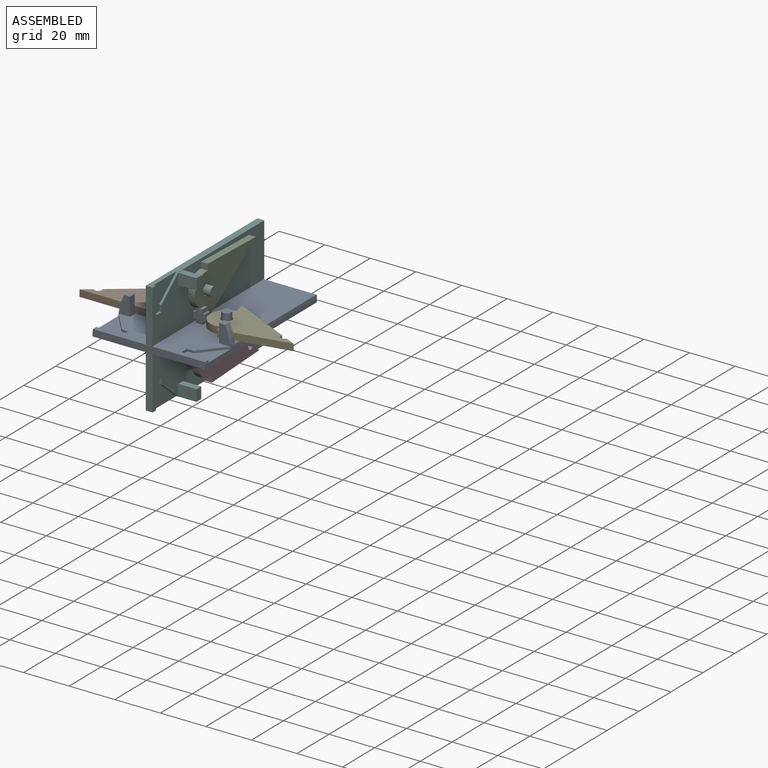
[diagram: assembled view]
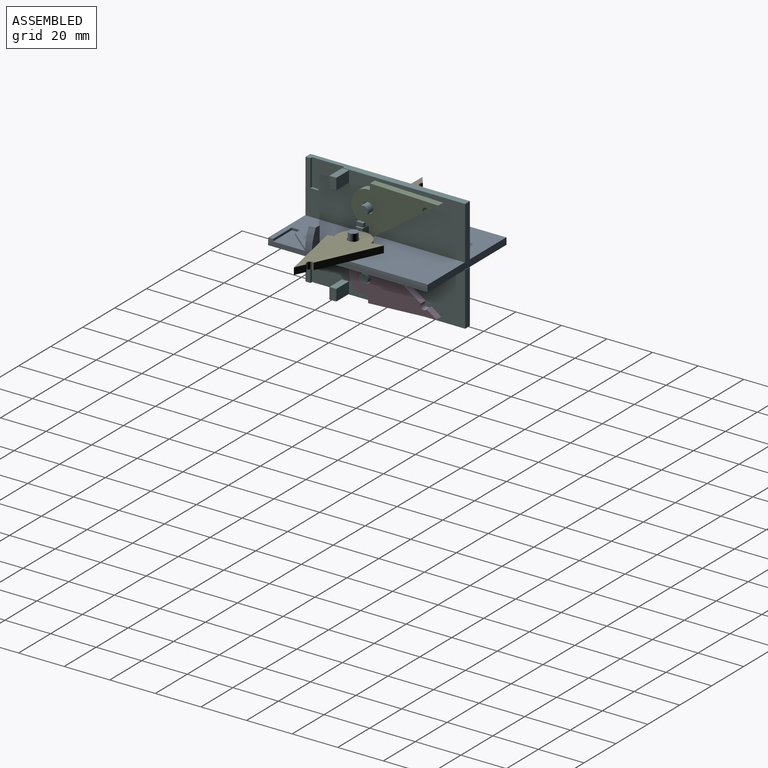
[diagram: assembled view, second angle]
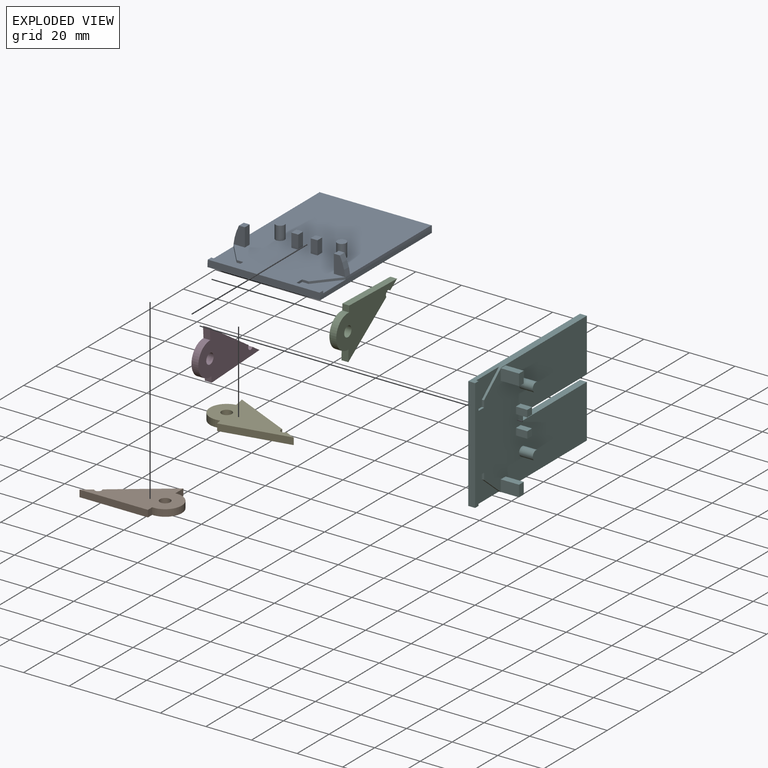
[diagram: exploded view]
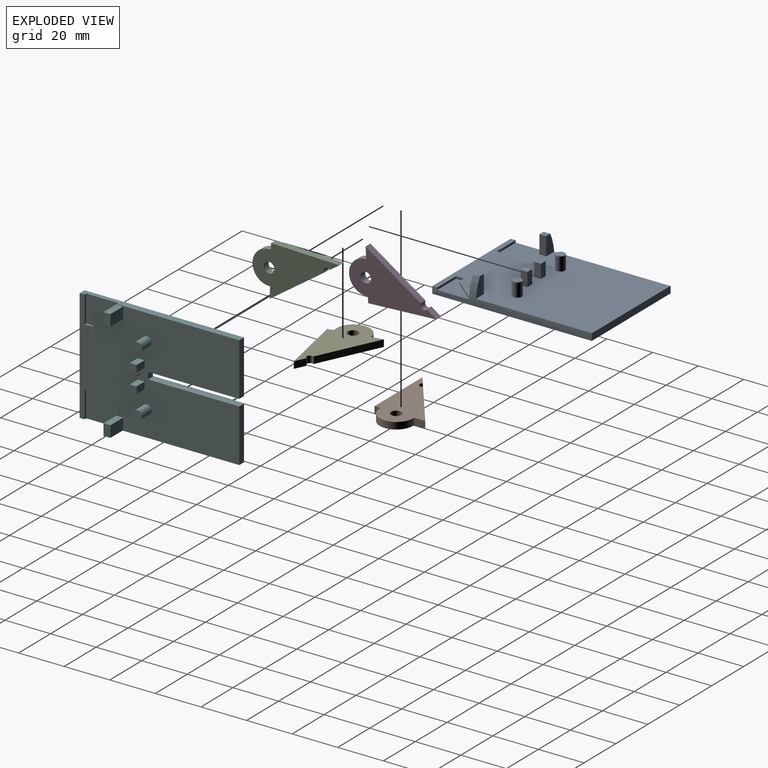
[diagram: exploded view, second angle]
ASSEMBLY  parts=6 mates=4
PART A: 42 faces, bbox 49.5x70x11 mm
  f0: plane 70x49.47mm, normal (0,0,1), area 3187.7mm2, adj f1,f3,f4,f6,f7,f9,f10,f12
  f1: plane 49.4x3mm, normal (0,-1,0), area 147.8mm2, adj f0,f2,f38,f41
  f2: plane 70x49.47mm, normal (0,0,-1), area 3458mm2, adj f1,f15,f16,f27,f38,f39,f40,f41
  f3: plane 8x4.98mm, normal (0,1,0), area 32.2mm2, adj f0,f5,f19,f41
  f4: plane 8x4.98mm, normal (0,-1,0), area 32.2mm2, adj f0,f5,f19,f41
  f5: plane 3x2.58mm, normal (0,0,1), area 7.7mm2, adj f3,f4,f19,f41
  f6: plane 11.71x1mm, normal (0,1,0), area 11.7mm2, adj f0,f8,f25,f41
  f7: plane 10.57x8.82mm, normal (-0.77,-0.64,0), area 13.7mm2, adj f0,f8,f26,f41
  f8: plane 14.04x11.71mm, normal (0,0,1), area 87.3mm2, adj f6,f7,f25,f26,f41
  f9: plane 8x4.98mm, normal (0,1,0), area 32.2mm2, adj f0,f11,f30,f38
  f10: plane 8x4.98mm, normal (0,-1,0), area 32.2mm2, adj f0,f11,f30,f38
  f11: plane 3x2.58mm, normal (0,0,1), area 7.7mm2, adj f9,f10,f30,f38
  f12: plane 11.71x1mm, normal (0,1,0), area 11.7mm2, adj f0,f14,f36,f38
  f13: plane 10.57x8.82mm, normal (0.77,-0.64,0), area 13.7mm2, adj f0,f14,f37,f38
  f14: plane 14.04x11.71mm, normal (0,0,1), area 87.3mm2, adj f12,f13,f36,f37,f38
  f15: plane 3x0.06mm, normal (-1,0,0), area 0.2mm2, adj f0,f2,f16,f40
  f16: plane 49.47x3mm, normal (0,1,0), area 148.4mm2, adj f0,f2,f15,f27
  f17: cylinder r=2mm len=6mm, axis (0,0,-1), area 75.4mm2, adj f0,f18
  f18: plane 4x4mm, normal (0,0,1), area 12.6mm2, adj f17
  f19: plane 8x3mm, normal (1,0,0), area 24mm2, adj f0,f3,f4,f5
  f20: plane 6x3mm, normal (-1,0,0), area 18mm2, adj f0,f21,f23,f24
  f21: plane 6x3mm, normal (0,-1,0), area 18mm2, adj f0,f20,f22,f24
  f22: plane 6x3mm, normal (1,0,0), area 18mm2, adj f0,f21,f23,f24
  f23: plane 6x3mm, normal (0,1,0), area 18mm2, adj f0,f20,f22,f24
  f24: plane 3x3mm, normal (0,0,1), area 9mm2, adj f20,f21,f22,f23
  f25: plane 3.47x1mm, normal (-1,0,0), area 3.5mm2, adj f0,f6,f8,f26
  f26: plane 2.89x1mm, normal (0,-1,0), area 2.9mm2, adj f0,f7,f8,f25
  f27: plane 3x0.06mm, normal (1,0,0), area 0.2mm2, adj f0,f2,f16,f39
  f28: cylinder r=2mm len=6mm, axis (0,0,-1), area 75.4mm2, adj f0,f29
  f29: plane 4x4mm, normal (0,0,1), area 12.6mm2, adj f28
  f30: plane 8x3mm, normal (-1,0,0), area 24mm2, adj f0,f9,f10,f11
  f31: plane 6x3mm, normal (1,0,0), area 18mm2, adj f0,f32,f34,f35
  f32: plane 6x3mm, normal (0,-1,0), area 18mm2, adj f0,f31,f33,f35
  f33: plane 6x3mm, normal (-1,0,0), area 18mm2, adj f0,f32,f34,f35
  f34: plane 6x3mm, normal (0,1,0), area 18mm2, adj f0,f31,f33,f35
  f35: plane 3x3mm, normal (0,0,1), area 9mm2, adj f31,f32,f33,f34
  f36: plane 3.47x1mm, normal (1,0,0), area 3.5mm2, adj f0,f12,f14,f37
  f37: plane 2.89x1mm, normal (0,-1,0), area 2.9mm2, adj f0,f13,f14,f36
  f38: cylinder r=24.7mm len=69.94mm, axis (0,1,0), area 221.5mm2, adj f0,f1,f2,f9,f10,f11,f12,f13
  f39: plane 3x0.22mm, normal (0,-1,0), area 0.3mm2, adj f0,f2,f27,f38
  f40: plane 3x0.22mm, normal (0,-1,0), area 0.3mm2, adj f0,f2,f15,f41
  f41: cylinder r=24.7mm len=69.94mm, axis (0,1,0), area 221.5mm2, adj f0,f1,f2,f3,f4,f5,f6,f7
PART B: 10 faces, bbox 37.9x22.2x3 mm
  f0: plane 23.4x17.34mm, normal (-0.6,0.8,0), area 87.4mm2, adj f5,f7,f8,f9
  f1: plane 4.19x3.11mm, normal (-0.6,0.8,0), area 15.7mm2, adj f2,f7,f8,f9
  f2: plane 30x3mm, normal (0,-1,0), area 90mm2, adj f1,f3,f7,f8
  f3: plane 3x2.68mm, normal (1,0,0), area 8mm2, adj f2,f4,f7,f8
  f4: cylinder r=7.3mm len=14.6mm, axis (0,0,-1), area 72.3mm2, adj f3,f5,f7,f8
  f5: plane 5x3mm, normal (1,0,0), area 15mm2, adj f0,f4,f7,f8
  f6: cylinder r=2.3mm len=4.6mm, axis (0,0,-1), area 43.4mm2, adj f7,f8
  f7: plane 37.89x22.23mm, normal (0,0,1), area 405.7mm2, adj f0,f1,f2,f3,f4,f5,f6,f9
  f8: plane 37.89x22.23mm, normal (0,0,-1), area 405.7mm2, adj f0,f1,f2,f3,f4,f5,f6,f9
  f9: cylinder r=1.5mm len=3mm, axis (0,0,1), area 14.1mm2, adj f0,f1,f7,f8
PART C: 10 faces, bbox 3x22.2x37.9 mm
  f0: plane 23.4x17.34mm, normal (0,0.8,-0.6), area 87.4mm2, adj f5,f7,f8,f9
  f1: plane 4.19x3.11mm, normal (0,0.8,-0.6), area 15.7mm2, adj f2,f7,f8,f9
  f2: plane 30x3mm, normal (0,-1,0), area 90mm2, adj f1,f3,f7,f8
  f3: plane 3x2.68mm, normal (0,0,1), area 8mm2, adj f2,f4,f7,f8
  f4: cylinder r=7.3mm len=14.6mm, axis (1,0,0), area 72.3mm2, adj f3,f5,f7,f8
  f5: plane 5x3mm, normal (0,0,1), area 15mm2, adj f0,f4,f7,f8
  f6: cylinder r=2.3mm len=4.6mm, axis (1,0,0), area 43.4mm2, adj f7,f8
  f7: plane 37.89x22.23mm, normal (-1,0,0), area 405.7mm2, adj f0,f1,f2,f3,f4,f5,f6,f9
  f8: plane 37.89x22.23mm, normal (1,0,0), area 405.7mm2, adj f0,f1,f2,f3,f4,f5,f6,f9
  f9: cylinder r=1.5mm len=3mm, axis (-1,0,0), area 14.1mm2, adj f0,f1,f7,f8
PART D: 10 faces, bbox 3x22.2x37.9 mm
  f0: plane 23.4x17.34mm, normal (0,0.8,0.6), area 87.4mm2, adj f5,f7,f8,f9
  f1: plane 4.19x3.11mm, normal (0,0.8,0.6), area 15.7mm2, adj f2,f7,f8,f9
  f2: plane 30x3mm, normal (0,-1,0), area 90mm2, adj f1,f3,f7,f8
  f3: plane 3x2.68mm, normal (0,0,-1), area 8mm2, adj f2,f4,f7,f8
  f4: cylinder r=7.3mm len=14.6mm, axis (1,0,0), area 72.3mm2, adj f3,f5,f7,f8
  f5: plane 5x3mm, normal (0,0,-1), area 15mm2, adj f0,f4,f7,f8
  f6: cylinder r=2.3mm len=4.6mm, axis (1,0,0), area 43.4mm2, adj f7,f8
  f7: plane 37.89x22.23mm, normal (-1,0,0), area 405.7mm2, adj f0,f1,f2,f3,f4,f5,f6,f9
  f8: plane 37.89x22.23mm, normal (1,0,0), area 405.7mm2, adj f0,f1,f2,f3,f4,f5,f6,f9
  f9: cylinder r=1.5mm len=3mm, axis (-1,0,0), area 14.1mm2, adj f0,f1,f7,f8
PART E: 10 faces, bbox 37.9x22.2x3 mm
  f0: plane 23.4x17.34mm, normal (0.6,0.8,0), area 87.4mm2, adj f5,f7,f8,f9
  f1: plane 4.19x3.11mm, normal (0.6,0.8,0), area 15.7mm2, adj f2,f7,f8,f9
  f2: plane 30x3mm, normal (0,-1,0), area 90mm2, adj f1,f3,f7,f8
  f3: plane 3x2.68mm, normal (-1,0,0), area 8mm2, adj f2,f4,f7,f8
  f4: cylinder r=7.3mm len=14.6mm, axis (0,0,-1), area 72.3mm2, adj f3,f5,f7,f8
  f5: plane 5x3mm, normal (-1,0,0), area 15mm2, adj f0,f4,f7,f8
  f6: cylinder r=2.3mm len=4.6mm, axis (0,0,-1), area 43.4mm2, adj f7,f8
  f7: plane 37.89x22.23mm, normal (0,0,1), area 405.7mm2, adj f0,f1,f2,f3,f4,f5,f6,f9
  f8: plane 37.89x22.23mm, normal (0,0,-1), area 405.7mm2, adj f0,f1,f2,f3,f4,f5,f6,f9
  f9: cylinder r=1.5mm len=3mm, axis (0,0,1), area 14.1mm2, adj f0,f1,f7,f8
PART F: 46 faces, bbox 11x70x49.5 mm
  f0: plane 23.24x3mm, normal (0,1,0), area 69.7mm2, adj f1,f2,f5,f43
  f1: plane 70x49.47mm, normal (-1,0,0), area 3092.1mm2, adj f0,f2,f3,f4,f6,f8,f9,f10
  f2: plane 70x3mm, normal (0,0,-1), area 195.8mm2, adj f0,f1,f3,f5,f19,f22,f23
  f3: plane 49.47x3mm, normal (0,-1,0), area 148.4mm2, adj f1,f2,f5,f24
  f4: plane 23.24x3mm, normal (0,1,0), area 69.7mm2, adj f1,f5,f24,f44
  f5: plane 70x49.47mm, normal (1,0,0), area 3343mm2, adj f0,f2,f3,f4,f24,f43,f44,f45
  f6: cylinder r=2mm len=6mm, axis (1,0,0), area 75.4mm2, adj f1,f7
  f7: plane 4x4mm, normal (-1,0,0), area 12.6mm2, adj f6
  f8: plane 8x5mm, normal (0,1,0), area 40mm2, adj f1,f9,f11,f12
  f9: plane 8x3mm, normal (0,0,-1), area 24mm2, adj f1,f8,f10,f12,f18
  f10: plane 8x5mm, normal (0,-1,0), area 40mm2, adj f1,f9,f11,f12,f18
  f11: plane 8x3mm, normal (0,0,1), area 24mm2, adj f1,f8,f10,f12
  f12: plane 5x3mm, normal (-1,0,0), area 15mm2, adj f8,f9,f10,f11
  f13: plane 5x3mm, normal (0,0,-1), area 15mm2, adj f1,f14,f16,f17
  f14: plane 5x3mm, normal (0,-1,0), area 15mm2, adj f1,f13,f15,f17
  f15: plane 5x3mm, normal (0,0,1), area 15mm2, adj f1,f14,f16,f17
  f16: plane 5x3mm, normal (0,1,0), area 15mm2, adj f1,f13,f15,f17
  f17: plane 3x3mm, normal (-1,0,0), area 9mm2, adj f13,f14,f15,f16
  f18: plane 0.02x0.01mm, normal (1,0,0), area 0mm2, adj f9,f10,f22
  f19: plane 11.83x1mm, normal (0,1,0), area 11.8mm2, adj f1,f2,f20,f23
  f20: plane 3.47x1mm, normal (0,0,-1), area 3.5mm2, adj f1,f19,f21,f23
  f21: plane 2.89x1mm, normal (0,-1,0), area 2.9mm2, adj f1,f20,f22,f23
  f22: plane 10.71x8.94mm, normal (0,-0.64,-0.77), area 14mm2, adj f1,f2,f18,f21,f23
  f23: plane 14.18x11.83mm, normal (-1,0,0), area 88.9mm2, adj f2,f19,f20,f21,f22
  f24: plane 70x3mm, normal (0,0,1), area 195.8mm2, adj f1,f3,f4,f5,f38,f41,f42
  f25: cylinder r=2mm len=6mm, axis (1,0,0), area 75.4mm2, adj f1,f26
  f26: plane 4x4mm, normal (-1,0,0), area 12.6mm2, adj f25
  f27: plane 8x5mm, normal (0,1,0), area 40mm2, adj f1,f28,f30,f31
  f28: plane 8x3mm, normal (0,0,1), area 24mm2, adj f1,f27,f29,f31,f37
  f29: plane 8x5mm, normal (0,-1,0), area 40mm2, adj f1,f28,f30,f31,f37
  f30: plane 8x3mm, normal (0,0,-1), area 24mm2, adj f1,f27,f29,f31
  f31: plane 5x3mm, normal (-1,0,0), area 15mm2, adj f27,f28,f29,f30
  f32: plane 5x3mm, normal (0,0,1), area 15mm2, adj f1,f33,f35,f36
  f33: plane 5x3mm, normal (0,-1,0), area 15mm2, adj f1,f32,f34,f36
  f34: plane 5x3mm, normal (0,0,-1), area 15mm2, adj f1,f33,f35,f36
  f35: plane 5x3mm, normal (0,1,0), area 15mm2, adj f1,f32,f34,f36
  f36: plane 3x3mm, normal (-1,0,0), area 9mm2, adj f32,f33,f34,f35
  f37: plane 0.02x0.01mm, normal (1,0,0), area 0mm2, adj f28,f29,f41
  f38: plane 11.83x1mm, normal (0,1,0), area 11.8mm2, adj f1,f24,f39,f42
  f39: plane 3.47x1mm, normal (0,0,1), area 3.5mm2, adj f1,f38,f40,f42
  f40: plane 2.89x1mm, normal (0,-1,0), area 2.9mm2, adj f1,f39,f41,f42
  f41: plane 10.71x8.94mm, normal (0,-0.64,0.77), area 14mm2, adj f1,f24,f37,f40,f42
  f42: plane 14.18x11.83mm, normal (-1,0,0), area 88.9mm2, adj f24,f38,f39,f40,f41
  f43: plane 40x3mm, normal (0,0,1), area 120mm2, adj f0,f1,f5,f45
  f44: plane 40x3mm, normal (0,0,-1), area 120mm2, adj f1,f4,f5,f45
  f45: plane 3x3mm, normal (0,1,0), area 9mm2, adj f1,f5,f43,f44
PLACE A t=(100.85,18.35,68.01)mm fixed
PLACE B t=(100.85,18.35,68.01)mm
PLACE C rot(axis=(0,-0.7,0.72),180deg) t=(120.08,-14.61,85.93)mm
PLACE D rot(axis=(0,-0.69,-0.72),180deg) t=(121.58,28.88,54.43)mm
PLACE E rot(axis=(0,0,1),11.5deg) t=(101.44,16.4,68.01)mm
PLACE F rot(axis=(0,1,0),180deg) t=(120.08,18.56,47.78)mm fixed
MATE revolute C.f4 <-> F.f6  axis (-1,0,0) through (101.85,20.56,83.01)mm
MATE revolute D.f4 <-> F.f25  axis (-1,0,0) through (101.85,20.56,56.01)mm
MATE revolute B.f4 <-> A.f17  axis (0,0,1) through (83.85,20.35,74.01)mm
MATE revolute A.f28 <-> E.f4  axis (0,0,-1) through (110.85,20.35,74.01)mm
